MODEL Wind_PMSG_Rectifier
KIND model
BLOCK [Reference] 3-phase   REF=powerlib_extras/Measurements/3-phase \nInstantaneous \nActive & Reactive Power
  DialogController = POWERSYS.PowerSysDialog
  FunctionWithSeparateData = off
  Ports = [2, 1]
  RTWMemSecDataConstants = Inherit from model
  RTWMemSecDataInternal = Inherit from model
  RTWMemSecDataParameters = Inherit from model
  RTWMemSecFuncExecute = Inherit from model
  RTWMemSecFuncInitTerm = Inherit from model
  ShowPortLabels = FromPortIcon
  SourceBlock = powerlib_extras/Measurements/3-phase \nInstantaneous \nActive & Reactive Power
  SourceType = 3-phase instantaneous active and reactive power
  SystemSampleTime = -1
BLOCK [Constant] Constant1
  OutDataType = sfix(16)
  OutScaling = 2^0
  Value = 300
BLOCK [Constant] Constant2
  OutDataType = sfix(16)
  OutScaling = 2^0
  Value = 12
BLOCK [Demux] Demux1
  DisplayOption = bar
  Outputs = 2
  Ports = [1, 2]
BLOCK [Reference] Discrete \nMean value  REF=powerlib_extras/Discrete\nMeasurements/Discrete \nMean value
  DialogController = POWERSYS.PowerSysDialog
  Freq = 50*6
  FunctionWithSeparateData = off
  Ports = [1, 1]
  RTWMemSecDataConstants = Inherit from model
  RTWMemSecDataInternal = Inherit from model
  RTWMemSecDataParameters = Inherit from model
  RTWMemSecFuncExecute = Inherit from model
  RTWMemSecFuncInitTerm = Inherit from model
  ShowPortLabels = FromPortIcon
  SourceBlock = powerlib_extras/Discrete\nMeasurements/Discrete \nMean value
  SourceType = Discrete Mean value
  SystemSampleTime = -1
  Ts = 50e-6
  Vinit = 0
BLOCK [Reference] Discrete \nMean value1  REF=powerlib_extras/Discrete\nMeasurements/Discrete \nMean value
  DialogController = POWERSYS.PowerSysDialog
  Freq = 50
  FunctionWithSeparateData = off
  Ports = [1, 1]
  RTWMemSecDataConstants = Inherit from model
  RTWMemSecDataInternal = Inherit from model
  RTWMemSecDataParameters = Inherit from model
  RTWMemSecFuncExecute = Inherit from model
  RTWMemSecFuncInitTerm = Inherit from model
  ShowPortLabels = FromPortIcon
  SourceBlock = powerlib_extras/Discrete\nMeasurements/Discrete \nMean value
  SourceType = Discrete Mean value
  SystemSampleTime = -1
  Ts = 20e-6
  Vinit = 0
BLOCK [Display] Display1
  Decimation = 1
  Lockdown = off
  Ports = [1]
BLOCK [From] From1
  CloseFcn = tagdialog Close
  GotoTag = Vabc_B1
  TagVisibility = global
BLOCK [From] From2
  CloseFcn = tagdialog Close
  GotoTag = Iabc_B1
  TagVisibility = global
BLOCK [Reference] Ground  REF=powerlib/Elements/Ground
  DialogController = POWERSYS.PowerSysDialog
  LConnTagsString = a
  LeftPortType = p1
  PhysicalDomain = powersysdomain
  Ports = [0, 0, 0, 0, 0, 1]
  RightPortType = p1
  SourceBlock = powerlib/Elements/Ground
  SourceType = Ground
  SubClassName = unknown
BLOCK [Reference] Manual Switch  REF=simulink/Signal\nRouting/Manual Switch
  FunctionWithSeparateData = off
  Ports = [2, 1]
  RTWMemSecDataConstants = Inherit from model
  RTWMemSecDataInternal = Inherit from model
  RTWMemSecDataParameters = Inherit from model
  RTWMemSecFuncExecute = Inherit from model
  RTWMemSecFuncInitTerm = Inherit from model
  ShowPortLabels = FromPortIcon
  SourceBlock = simulink/Signal\nRouting/Manual Switch
  SourceType = Manual Switch
  SystemSampleTime = -1
  action = 0
  sw = 0
  varsize = off
BLOCK [Mux] Mux1
  DisplayOption = bar
  Inputs = 2
  Ports = [2, 1]
BLOCK [Reference] RL  REF=powerlib/Elements/Series RLC Branch
  BranchType = RL
  Capacitance = 1e-6
  DialogController = POWERSYS.PowerSysDialog
  Inductance = 50e-3
  InitialCurrent = 0
  InitialVoltage = 0
  LConnTagsString = __new0
  LeftPortType = p1
  Measurements = None
  PhysicalDomain = powersysdomain
  Ports = [0, 0, 0, 0, 0, 1, 1]
  RConnTagsString = __new0
  Resistance = 10
  RightPortType = p1
  SetiL0 = off
  Setx0 = off
  SourceBlock = powerlib/Elements/Series RLC Branch
  SourceType = Series RLC Branch
  SubClassName = unknown
BLOCK [Saturate] Saturation
  LowerLimit = -1000
  OutDataType = sfix(16)
  OutScaling = 2^0
  UpperLimit = 1000
BLOCK [Saturate] Saturation1
  LowerLimit = -1000
  OutDataType = sfix(16)
  OutScaling = 2^0
  UpperLimit = 1000
BLOCK [Scope] Scope1
  DataFormat = StructureWithTime
  Floating = off
  LimitDataPoints = off
  NumInputPorts = 1
  Ports = [1]
  SampleTime = 0
  SaveName = ScopeData3
  TimeRange = 0.02
  YMax = 355
  YMin = 270
BLOCK [Scope] Scope2
  DataFormat = StructureWithTime
  Floating = off
  LimitDataPoints = off
  NumInputPorts = 1
  Ports = [1]
  SampleTime = 0
  SaveName = ScopeData5
  TimeRange = 0.02
  YMax = 438
  YMin = 423
BLOCK [Scope] Scope3
  DataFormat = StructureWithTime
  Floating = off
  LimitDataPoints = off
  NumInputPorts = 1
  Ports = [1]
  SampleTime = 0
  SaveName = ScopeData6
  TimeRange = 0.02
  YMax = 700
  YMin = -1000
BLOCK [Reference] Speed3  REF=powerlib_extras/Control \nBlocks/Timer
  DialogController = POWERSYS.PowerSysDialog
  FunctionWithSeparateData = off
  Ports = [0, 1]
  RTWMemSecDataConstants = Inherit from model
  RTWMemSecDataInternal = Inherit from model
  RTWMemSecDataParameters = Inherit from model
  RTWMemSecFuncExecute = Inherit from model
  RTWMemSecFuncInitTerm = Inherit from model
  ShowPortLabels = FromPortIcon
  SourceBlock = powerlib_extras/Control \nBlocks/Timer
  SourceType = Timer
  SystemSampleTime = -1
  e = [12 7 12]
  t = [0 3 5]
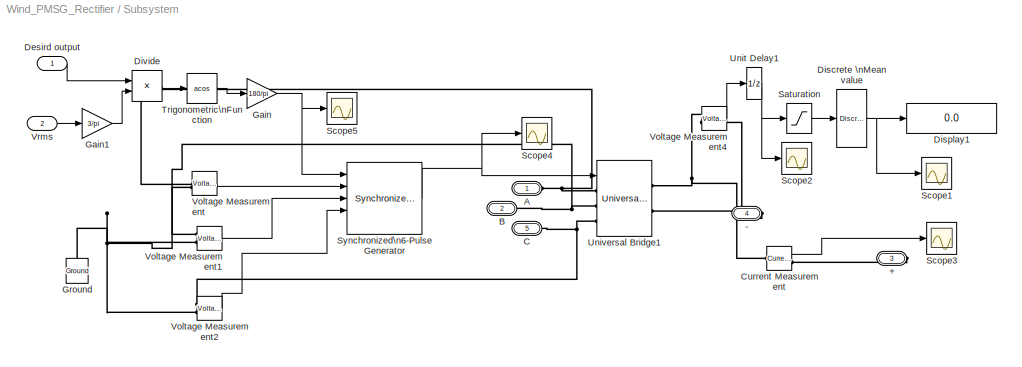
BLOCK [SubSystem] Subsystem
  FunctionWithSeparateData = off
  MaskHideContents = off
  MinAlgLoopOccurrences = off
  Opaque = off
  Ports = [2, 0, 0, 0, 0, 3, 2]
  PropExecContextOutsideSubsystem = off
  RTWSystemCode = Auto
  RequestExecContextInheritance = off
BLOCK [PMIOPort] Subsystem/+
  Port = 3
  Side = Right
BLOCK [PMIOPort] Subsystem/-
  Port = 4
  Side = Right
BLOCK [PMIOPort] Subsystem/A
  Port = 1
  Side = Left
BLOCK [PMIOPort] Subsystem/B
  Port = 2
  Side = Left
BLOCK [PMIOPort] Subsystem/C
  Port = 5
  Side = Left
BLOCK [Reference] Subsystem/Current Measurement  REF=powerlib/Measurements/Current Measurement
  DialogController = POWERSYS.PowerSysDialog
  FunctionWithSeparateData = off
  OutputType = Complex
  PSBequivalent = 0
  PhasorSimulation = off
  Ports = [0, 1, 0, 0, 0, 1, 1]
  RTWMemSecDataConstants = Inherit from model
  RTWMemSecDataInternal = Inherit from model
  RTWMemSecDataParameters = Inherit from model
  RTWMemSecFuncExecute = Inherit from model
  RTWMemSecFuncInitTerm = Inherit from model
  ShowPortLabels = FromPortIcon
  SourceBlock = powerlib/Measurements/Current Measurement
  SourceType = Current Measurement
  SystemSampleTime = -1
BLOCK [Inport] Subsystem/Desird output
  IconDisplay = Port number
BLOCK [Reference] Subsystem/Discrete \nMean value  REF=powerlib_extras/Discrete\nMeasurements/Discrete \nMean value
  DialogController = POWERSYS.PowerSysDialog
  Freq = 50*6
  FunctionWithSeparateData = off
  Ports = [1, 1]
  RTWMemSecDataConstants = Inherit from model
  RTWMemSecDataInternal = Inherit from model
  RTWMemSecDataParameters = Inherit from model
  RTWMemSecFuncExecute = Inherit from model
  RTWMemSecFuncInitTerm = Inherit from model
  ShowPortLabels = FromPortIcon
  SourceBlock = powerlib_extras/Discrete\nMeasurements/Discrete \nMean value
  SourceType = Discrete Mean value
  SystemSampleTime = -1
  Ts = 50e-6
  Vinit = 0
BLOCK [Display] Subsystem/Display1
  Decimation = 1
  Lockdown = off
  Ports = [1]
BLOCK [Product] Subsystem/Divide
  InputSameDT = off
  Inputs = */
  OutDataType = sfix(16)
  OutDataTypeMode = Inherit via internal rule
  OutDataTypeStr = Inherit: Inherit via internal rule
  OutScaling = 2^-10
  Ports = [2, 1]
  RndMeth = Floor
  SaturateOnIntegerOverflow = off
BLOCK [Gain] Subsystem/Gain
  Gain = 180/pi
  OutDataType = sfix(16)
  OutDataTypeMode = Inherit via internal rule
  OutDataTypeStr = Inherit: Inherit via internal rule
  OutScaling = 2^0
  ParamDataTypeStr = Inherit: Inherit via internal rule
  ParameterDataType = sfix(16)
  ParameterDataTypeMode = Inherit via internal rule
  ParameterScaling = 2^0
  SaturateOnIntegerOverflow = off
BLOCK [Gain] Subsystem/Gain1
  Gain = 3/pi
  OutDataType = sfix(16)
  OutDataTypeMode = Inherit via internal rule
  OutDataTypeStr = Inherit: Inherit via internal rule
  OutScaling = 2^0
  ParamDataTypeStr = Inherit: Inherit via internal rule
  ParameterDataType = sfix(16)
  ParameterDataTypeMode = Inherit via internal rule
  ParameterScaling = 2^0
  SaturateOnIntegerOverflow = off
BLOCK [Reference] Subsystem/Ground  REF=powerlib/Elements/Ground
  DialogController = POWERSYS.PowerSysDialog
  LConnTagsString = a
  LeftPortType = p1
  PhysicalDomain = powersysdomain
  Ports = [0, 0, 0, 0, 0, 1]
  RightPortType = p1
  SourceBlock = powerlib/Elements/Ground
  SourceType = Ground
  SubClassName = unknown
BLOCK [Saturate] Subsystem/Saturation
  LowerLimit = -1000
  OutDataType = sfix(16)
  OutScaling = 2^0
  UpperLimit = 1000
BLOCK [Scope] Subsystem/Scope1
  DataFormat = StructureWithTime
  Floating = off
  LimitDataPoints = off
  NumInputPorts = 1
  Ports = [1]
  SampleTime = 0
  TimeRange = 0.02
  YMax = 325
  YMin = -25
BLOCK [Scope] Subsystem/Scope2
  DataFormat = StructureWithTime
  Floating = off
  LimitDataPoints = off
  NumInputPorts = 1
  Ports = [1]
  SampleTime = 0
  SaveName = ScopeData1
  TimeRange = 0.02
  YMax = 550
  YMin = -250
BLOCK [Scope] Subsystem/Scope3
  DataFormat = StructureWithTime
  Floating = off
  LimitDataPoints = off
  NumInputPorts = 1
  Ports = [1]
  SampleTime = 0
  SaveName = ScopeData2
  TimeRange = 0.02
  YMax = 28.5
  YMin = 25.75
BLOCK [Scope] Subsystem/Scope4
  DataFormat = StructureWithTime
  Floating = off
  LimitDataPoints = off
  NumInputPorts = 1
  Ports = [1]
  SampleTime = 0
  SaveName = ScopeData4
  TimeRange = 0.02
  YMax = 1
  YMin = 0
BLOCK [Scope] Subsystem/Scope5
  DataFormat = StructureWithTime
  Floating = off
  LimitDataPoints = off
  NumInputPorts = 1
  Ports = [1]
  SampleTime = 0
  SaveName = ScopeData7
  TimeRange = 0.02
  YMax = 1
  YMin = -1
BLOCK [Reference] Subsystem/Synchronized\n6-Pulse Generator  REF=powerlib_extras/Control \nBlocks/Synchronized\n6-Pulse Generator
  DialogController = POWERSYS.PowerSysDialog
  Double_Pulse = off
  FunctionWithSeparateData = off
  Ports = [5, 1]
  RTWMemSecDataConstants = Inherit from model
  RTWMemSecDataInternal = Inherit from model
  RTWMemSecDataParameters = Inherit from model
  RTWMemSecFuncExecute = Inherit from model
  RTWMemSecFuncInitTerm = Inherit from model
  ShowPortLabels = FromPortIcon
  SourceBlock = powerlib_extras/Control \nBlocks/Synchronized\n6-Pulse Generator
  SourceType = Synchronized 6-pulse generator
  SystemSampleTime = -1
  freq = 25
  pwidth = 50
BLOCK [Trigonometry] Subsystem/Trigonometric\nFunction
  Operator = acos
  Ports = [1, 1]
BLOCK [UnitDelay] Subsystem/Unit Delay1
  SampleTime = -1
BLOCK [Reference] Subsystem/Universal Bridge1  REF=powerlib/Power\nElectronics/Universal Bridge
  Arms = 3
  Device = Thyristors
  DialogController = POWERSYS.PowerSysDialog
  ForwardVoltage = 0
  ForwardVoltages = [  0  0  ]
  FunctionWithSeparateData = off
  GTOparameters = [ 10e-6 , 20e-6 ]
  IGBTparameters = [ 1e-6 , 2e-6 ]
  Lon = 0
  Measurements = None
  Ports = [1, 0, 0, 0, 0, 3, 2]
  RTWMemSecDataConstants = Inherit from model
  RTWMemSecDataInternal = Inherit from model
  RTWMemSecDataParameters = Inherit from model
  RTWMemSecFuncExecute = Inherit from model
  RTWMemSecFuncInitTerm = Inherit from model
  Ron = 1e-3
  ShowPortLabels = FromPortIcon
  SnubberCapacitance = inf
  SnubberResistance = 1e5
  SourceBlock = powerlib/Power\nElectronics/Universal Bridge
  SourceType = Universal Bridge
  SystemSampleTime = -1
  converterType = Rectifier
BLOCK [Reference] Subsystem/Voltage Measurement  REF=powerlib/Measurements/Voltage Measurement
  DialogController = POWERSYS.PowerSysDialog
  FunctionWithSeparateData = off
  OutputType = Complex
  PSBequivalent = 0
  PhasorSimulation = off
  Ports = [0, 1, 0, 0, 0, 2]
  RTWMemSecDataConstants = Inherit from model
  RTWMemSecDataInternal = Inherit from model
  RTWMemSecDataParameters = Inherit from model
  RTWMemSecFuncExecute = Inherit from model
  RTWMemSecFuncInitTerm = Inherit from model
  ShowPortLabels = FromPortIcon
  SourceBlock = powerlib/Measurements/Voltage Measurement
  SourceType = Voltage Measurement
  SystemSampleTime = -1
BLOCK [Reference] Subsystem/Voltage Measurement1  REF=powerlib/Measurements/Voltage Measurement
  DialogController = POWERSYS.PowerSysDialog
  FunctionWithSeparateData = off
  OutputType = Complex
  PSBequivalent = 0
  PhasorSimulation = off
  Ports = [0, 1, 0, 0, 0, 2]
  RTWMemSecDataConstants = Inherit from model
  RTWMemSecDataInternal = Inherit from model
  RTWMemSecDataParameters = Inherit from model
  RTWMemSecFuncExecute = Inherit from model
  RTWMemSecFuncInitTerm = Inherit from model
  ShowPortLabels = FromPortIcon
  SourceBlock = powerlib/Measurements/Voltage Measurement
  SourceType = Voltage Measurement
  SystemSampleTime = -1
BLOCK [Reference] Subsystem/Voltage Measurement2  REF=powerlib/Measurements/Voltage Measurement
  DialogController = POWERSYS.PowerSysDialog
  FunctionWithSeparateData = off
  OutputType = Complex
  PSBequivalent = 0
  PhasorSimulation = off
  Ports = [0, 1, 0, 0, 0, 2]
  RTWMemSecDataConstants = Inherit from model
  RTWMemSecDataInternal = Inherit from model
  RTWMemSecDataParameters = Inherit from model
  RTWMemSecFuncExecute = Inherit from model
  RTWMemSecFuncInitTerm = Inherit from model
  ShowPortLabels = FromPortIcon
  SourceBlock = powerlib/Measurements/Voltage Measurement
  SourceType = Voltage Measurement
  SystemSampleTime = -1
BLOCK [Reference] Subsystem/Voltage Measurement4  REF=powerlib/Measurements/Voltage Measurement
  DialogController = POWERSYS.PowerSysDialog
  FunctionWithSeparateData = off
  OutputType = Complex
  PSBequivalent = 0
  PhasorSimulation = off
  Ports = [0, 1, 0, 0, 0, 2]
  RTWMemSecDataConstants = Inherit from model
  RTWMemSecDataInternal = Inherit from model
  RTWMemSecDataParameters = Inherit from model
  RTWMemSecFuncExecute = Inherit from model
  RTWMemSecFuncInitTerm = Inherit from model
  ShowPortLabels = FromPortIcon
  SourceBlock = powerlib/Measurements/Voltage Measurement
  SourceType = Voltage Measurement
  SystemSampleTime = -1
BLOCK [Inport] Subsystem/Vrms
  IconDisplay = Port number
  Port = 2
BLOCK [Scope] T
  DataFormat = StructureWithTime
  Floating = off
  LimitDataPoints = off
  NumInputPorts = 2
  Ports = [2]
  SampleInput = on
  SampleTime = 100e-6
  SaveName = Wind_MPPT
  SaveToWorkspace = on
  YMax = 39.97~152.59
  YMin = 39.75~152.46
BLOCK [Scope] T1
  DataFormat = StructureWithTime
  Floating = off
  LimitDataPoints = off
  NumInputPorts = 2
  Ports = [2]
  SampleInput = on
  SampleTime = 100e-6
  SaveName = Wind_MPPT1
  SaveToWorkspace = on
  YMax = 4520~3.5e-014
  YMin = 4380~-4e-014
BLOCK [Reference] Three-Phase Breaker  REF=powerlib/Elements/Three-Phase Breaker
  BreakerResistance = 0.001
  DialogController = POWERSYS.PowerSysDialog
  External = off
  FunctionWithSeparateData = off
  InitialState = open
  Measurements = None
  Ports = [0, 0, 0, 0, 0, 3, 3]
  RTWMemSecDataConstants = Inherit from model
  RTWMemSecDataInternal = Inherit from model
  RTWMemSecDataParameters = Inherit from model
  RTWMemSecFuncExecute = Inherit from model
  RTWMemSecFuncInitTerm = Inherit from model
  ShowPortLabels = FromPortIcon
  SnubberCapacitance = inf
  SnubberResistance = 1e6
  SourceBlock = powerlib/Elements/Three-Phase Breaker
  SourceType = Three-Phase Breaker
  SwitchA = on
  SwitchB = on
  SwitchC = on
  SwitchTimes = [1 10]
  SystemSampleTime = -1
BLOCK [Reference] Three-Phase\nSeries RLC Branch  REF=powerlib/Elements/Three-Phase\nSeries RLC Branch
  AttributesFormatString = \\n
  BranchType = R
  Capacitance = 1e-6
  DialogController = POWERSYS.PowerSysDialog
  Inductance = 1e-3
  LConnTagsString = A|B|C
  LeftPortType = p1
  Measurements = None
  PhysicalDomain = powersysdomain
  Ports = [0, 0, 0, 0, 0, 3, 3]
  RConnTagsString = A|B|C
  Resistance = 800
  RightPortType = p1
  SourceBlock = powerlib/Elements/Three-Phase\nSeries RLC Branch
  SourceType = Three-Phase Series RLC Branch
  SubClassName = unknown
BLOCK [UnitDelay] Unit Delay1
  SampleTime = -1
BLOCK [Reference] Vab3  REF=powerlib_extras/Discrete\nMeasurements/Discrete \nRMS value
  DialogController = POWERSYS.PowerSysDialog
  Freq = 50
  FunctionWithSeparateData = off
  Mag_Init = 0
  Ports = [1, 1]
  RTWMemSecDataConstants = Inherit from model
  RTWMemSecDataInternal = Inherit from model
  RTWMemSecDataParameters = Inherit from model
  RTWMemSecFuncExecute = Inherit from model
  RTWMemSecFuncInitTerm = Inherit from model
  ShowPortLabels = FromPortIcon
  SourceBlock = powerlib_extras/Discrete\nMeasurements/Discrete \nRMS value
  SourceType = Discrete RMS value
  SystemSampleTime = -1
  Ts = 20e-6
BLOCK [Reference] Voltage Measurement1  REF=powerlib/Measurements/Voltage Measurement
  DialogController = POWERSYS.PowerSysDialog
  FunctionWithSeparateData = off
  OutputType = Complex
  PSBequivalent = 0
  PhasorSimulation = off
  Ports = [0, 1, 0, 0, 0, 2]
  RTWMemSecDataConstants = Inherit from model
  RTWMemSecDataInternal = Inherit from model
  RTWMemSecDataParameters = Inherit from model
  RTWMemSecFuncExecute = Inherit from model
  RTWMemSecFuncInitTerm = Inherit from model
  ShowPortLabels = FromPortIcon
  SourceBlock = powerlib/Measurements/Voltage Measurement
  SourceType = Voltage Measurement
  SystemSampleTime = -1
BLOCK [Reference] Voltage Measurement4  REF=powerlib/Measurements/Voltage Measurement
  DialogController = POWERSYS.PowerSysDialog
  FunctionWithSeparateData = off
  OutputType = Complex
  PSBequivalent = 0
  PhasorSimulation = off
  Ports = [0, 1, 0, 0, 0, 2]
  RTWMemSecDataConstants = Inherit from model
  RTWMemSecDataInternal = Inherit from model
  RTWMemSecDataParameters = Inherit from model
  RTWMemSecFuncExecute = Inherit from model
  RTWMemSecFuncInitTerm = Inherit from model
  ShowPortLabels = FromPortIcon
  SourceBlock = powerlib/Measurements/Voltage Measurement
  SourceType = Voltage Measurement
  SystemSampleTime = -1
BLOCK [Display] power1
  Decimation = 1
  Lockdown = off
  Ports = [1]
  SampleTime = 1e-3
BLOCK [Reference] powergui  REF=powerlib/powergui
  DisplayStyle = 1
  EnableUseOfTLC = off
  Frange = [0:2:500]
  FreqAxis = off
  FunctionMessages = off
  FunctionWithSeparateData = off
  HookPort = off
  Interpol = off
  MaxFrequency = 1000
  Ports = []
  RTWMemSecDataConstants = Inherit from model
  RTWMemSecDataInternal = Inherit from model
  RTWMemSecDataParameters = Inherit from model
  RTWMemSecFuncExecute = Inherit from model
  RTWMemSecFuncInitTerm = Inherit from model
  RestoreLinks = warning
  RmsSteady = 1
  SPID = off
  SampleTime = 20e-6
  ShowGrid = off
  ShowPortLabels = FromPortIcon
  SourceBlock = powerlib/powergui
  SourceType = PSB option menu block
  StartTime = 0.0
  SwTol = 0
  SystemSampleTime = -1
  Ts = 0
  UserData = DataTag0
  UserDataPersistent = on
  Xlog = on
  Ylog = off
  ZoomFFT = on
  cycles = 1
  display = off
  echomessages = off
  frequency = 60
  frequencyindice = 0
  frequencyindicesteady = 1
  fundamental = 60
  methode = off
  save = off
  variable = ZData
  x0status = blocks
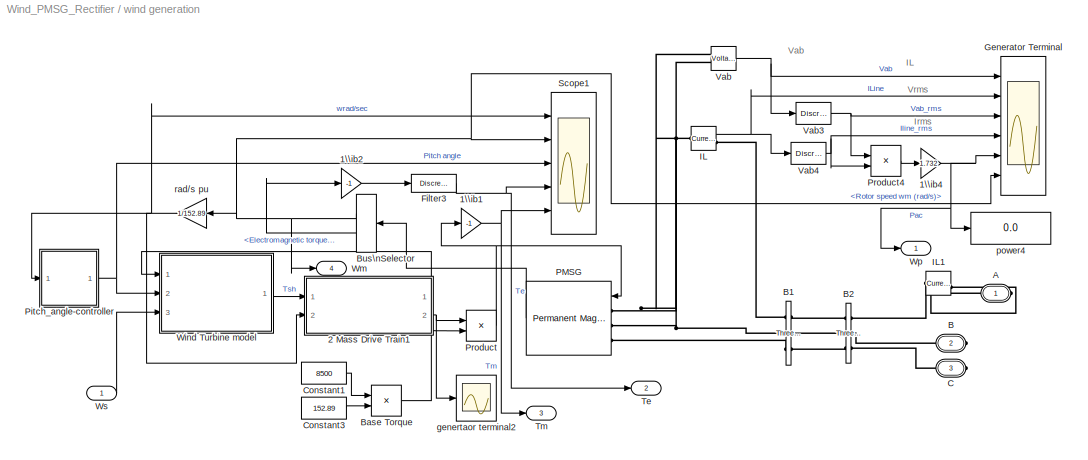
BLOCK [SubSystem] wind generation
  FunctionWithSeparateData = off
  MaskHideContents = off
  MinAlgLoopOccurrences = off
  Opaque = off
  Ports = [1, 4, 0, 0, 0, 0, 3]
  PropExecContextOutsideSubsystem = off
  RTWSystemCode = Auto
  RequestExecContextInheritance = off
BLOCK [Gain] wind generation/1\\ib1
  Gain = -1
  OutDataType = sfix(16)
  OutScaling = 2^0
  ParameterDataType = sfix(16)
  ParameterScaling = 2^0
BLOCK [Gain] wind generation/1\\ib2
  Gain = -1
  OutDataType = sfix(16)
  OutScaling = 2^0
  ParameterDataType = sfix(16)
  ParameterScaling = 2^0
BLOCK [Gain] wind generation/1\\ib4
  Gain = 1.732
  OutDataType = sfix(16)
  OutScaling = 2^0
  ParameterDataType = sfix(16)
  ParameterScaling = 2^0
BLOCK [SubSystem] wind generation/2 Mass Drive Train1
  FunctionWithSeparateData = off
  MaskHideContents = off
  MinAlgLoopOccurrences = off
  Opaque = off
  Ports = [2, 2]
  PropExecContextOutsideSubsystem = off
  RTWSystemCode = Auto
  RequestExecContextInheritance = off
BLOCK [Gain] wind generation/2 Mass Drive Train1/1_2H_WT\nWind Turbine Inertia Const
  Gain = 1/(2*4)
  OutDataType = sfix(16)
  OutScaling = 2^0
  ParameterDataType = sfix(16)
  ParameterScaling = 2^0
BLOCK [DiscreteIntegrator] wind generation/2 Mass Drive Train1/Discrete-Time\nIntegrator
  ExternalReset = none
  ICPrevOutput = DiscIntNeverNeededParam
  ICPrevScaledInput = DiscIntNeverNeededParam
  InitialCondition = 1
  InitialConditionSource = internal
  IntegratorMethod = Integration: Forward Euler
  OutDataType = sfix(16)
  OutScaling = 2^0
  Ports = [1, 1]
  SampleTime = 20e-6
BLOCK [DiscreteIntegrator] wind generation/2 Mass Drive Train1/Discrete-Time\nIntegrator1
  ExternalReset = none
  ICPrevOutput = DiscIntNeverNeededParam
  ICPrevScaledInput = DiscIntNeverNeededParam
  InitialCondition = 1/0.3
  InitialConditionSource = internal
  IntegratorMethod = Integration: Forward Euler
  LowerSaturationLimit = -4
  OutDataType = sfix(16)
  OutScaling = 2^0
  Ports = [1, 1]
  SampleTime = 20e-6
  UpperSaturationLimit = 4
BLOCK [Gain] wind generation/2 Mass Drive Train1/Gain
  Gain = -1
  OutDataType = sfix(16)
  OutScaling = 2^0
  ParameterDataType = sfix(16)
  ParameterScaling = 2^0
BLOCK [Inport] wind generation/2 Mass Drive Train1/Gen speed (pu)
  IconDisplay = Port number
  OutDataType = sfix(16)
  OutScaling = 2^0
  Port = 2
BLOCK [Gain] wind generation/2 Mass Drive Train1/Mutual damping
  OutDataType = sfix(16)
  OutScaling = 2^0
  ParameterDataType = sfix(16)
  ParameterScaling = 2^0
BLOCK [Gain] wind generation/2 Mass Drive Train1/Stiffness\nShaft Spring Const
  Gain = 0.3
  OutDataType = sfix(16)
  OutScaling = 2^0
  ParameterDataType = sfix(16)
  ParameterScaling = 2^0
BLOCK [Sum] wind generation/2 Mass Drive Train1/Sum
  Inputs = +-
  OutDataType = sfix(16)
  OutScaling = 2^0
  Ports = [2, 1]
BLOCK [Sum] wind generation/2 Mass Drive Train1/Sum1
  Inputs = +-
  OutDataType = sfix(16)
  OutScaling = 2^0
  Ports = [2, 1]
BLOCK [Sum] wind generation/2 Mass Drive Train1/Sum2
  OutDataType = sfix(16)
  OutScaling = 2^0
  Ports = [2, 1]
BLOCK [Outport] wind generation/2 Mass Drive Train1/T_shaft (pu)
  IconDisplay = Port number
  OutDataType = sfix(16)
  OutScaling = 2^0
  Port = 2
BLOCK [Inport] wind generation/2 Mass Drive Train1/T_wt (pu)
  IconDisplay = Port number
  OutDataType = sfix(16)
  OutScaling = 2^0
BLOCK [Outport] wind generation/2 Mass Drive Train1/W_wt (pu)
  IconDisplay = Port number
  OutDataType = sfix(16)
  OutScaling = 2^0
BLOCK [Scope] wind generation/2 Mass Drive Train1/genertaor terminal5
  DataFormat = StructureWithTime
  Floating = off
  LimitDataPoints = off
  NumInputPorts = 1
  Ports = [1]
  SampleInput = on
  SampleTime = 100e-6
  SaveName = Wwt
  SaveToWorkspace = on
  YMax = 0.94425
  YMin = 0.94175
BLOCK [Gain] wind generation/2 Mass Drive Train1/wbase
  Gain = 152.8
  OutDataType = sfix(16)
  OutScaling = 2^0
  ParameterDataType = sfix(16)
  ParameterScaling = 2^0
BLOCK [PMIOPort] wind generation/A
  Port = 1
  Side = Right
  Tag = PMCPort
BLOCK [PMIOPort] wind generation/B
  Port = 2
  Side = Right
  Tag = PMCPort
BLOCK [Reference] wind generation/B1  REF=powerlib/Measurements/Three-Phase\nV-I Measurement
  CurrentMeasurement = yes
  DialogController = POWERSYS.PowerSysDialog
  FunctionWithSeparateData = off
  Ipu = off
  LabelI = Iabc_B1
  LabelV = Vabc_B1
  OutputType = Magnitude
  PSBequivalent = 0
  Pbase = 100e6
  PhasorSimulation = off
  Ports = [0, 0, 0, 0, 0, 3, 3]
  RTWMemSecDataConstants = Inherit from model
  RTWMemSecDataInternal = Inherit from model
  RTWMemSecDataParameters = Inherit from model
  RTWMemSecFuncExecute = Inherit from model
  RTWMemSecFuncInitTerm = Inherit from model
  SetLabelI = on
  SetLabelV = on
  ShowPortLabels = FromPortIcon
  SourceBlock = powerlib/Measurements/Three-Phase\nV-I Measurement
  SourceType = Three-Phase VI Measurement
  SystemSampleTime = -1
  Vbase = 500e3
  VoltageMeasurement = phase-to-ground
  Vpu = off
BLOCK [Reference] wind generation/B2   REF=powerlib/Measurements/Three-Phase\nV-I Measurement
  CurrentMeasurement = no
  DialogController = POWERSYS.PowerSysDialog
  FunctionWithSeparateData = off
  Ipu = off
  LabelI = Iabc_B2
  LabelV = Vabc_B2
  OutputType = Magnitude
  PSBequivalent = 0
  Pbase = 100e6
  PhasorSimulation = off
  Ports = [0, 0, 0, 0, 0, 3, 3]
  RTWMemSecDataConstants = Inherit from model
  RTWMemSecDataInternal = Inherit from model
  RTWMemSecDataParameters = Inherit from model
  RTWMemSecFuncExecute = Inherit from model
  RTWMemSecFuncInitTerm = Inherit from model
  SetLabelI = on
  SetLabelV = on
  ShowPortLabels = FromPortIcon
  SourceBlock = powerlib/Measurements/Three-Phase\nV-I Measurement
  SourceType = Three-Phase VI Measurement
  SystemSampleTime = -1
  Vbase = 500e3
  VoltageMeasurement = no
  Vpu = off
BLOCK [Product] wind generation/Base Torque
  InputSameDT = off
  Inputs = */
  OutDataType = sfix(16)
  OutDataTypeMode = Inherit via internal rule
  OutDataTypeStr = Inherit: Inherit via internal rule
  OutScaling = 2^0
  Ports = [2, 1]
  SaturateOnIntegerOverflow = off
BLOCK [BusSelector] wind generation/Bus\nSelector
  OutputSignals = Rotor speed wm (rad/s),Electromagnetic torque Te (N*m)
  Ports = [1, 2]
BLOCK [PMIOPort] wind generation/C
  Port = 3
  Side = Right
  Tag = PMCPort
BLOCK [Constant] wind generation/Constant1
  OutDataType = sfix(16)
  OutScaling = 2^0
  Value = 8500
BLOCK [Constant] wind generation/Constant3
  OutDataType = sfix(16)
  OutScaling = 2^0
  Value = 152.89
BLOCK [Reference] wind generation/Filter3  REF=powerlib_extras/Discrete \nControl Blocks/Discrete\n1st-Order\nFilter
  DialogController = POWERSYS.PowerSysDialog
  FilterType = Lowpass
  FunctionWithSeparateData = off
  Initialize = off
  PlotResponse = off
  Ports = [1, 1]
  RTWMemSecDataConstants = Inherit from model
  RTWMemSecDataInternal = Inherit from model
  RTWMemSecDataParameters = Inherit from model
  RTWMemSecFuncExecute = Inherit from model
  RTWMemSecFuncInitTerm = Inherit from model
  ShowPortLabels = FromPortIcon
  SourceBlock = powerlib_extras/Discrete \nControl Blocks/Discrete\n1st-Order\nFilter
  SourceType = Discrete 1st-Order Filter
  SystemSampleTime = -1
  Tc = 1e-3
  Ts = 20e-6
  Vac_Init = [0.8 -25 60]
  Vdc_Init = -0.4
  param1 = [1 500 0.1]
BLOCK [Scope] wind generation/Generator Terminal
  DataFormat = StructureWithTime
  Floating = off
  LimitDataPoints = off
  NumInputPorts = 6
  Ports = [6]
  SampleInput = on
  SampleTime = 100e-6
  SaveName = Generator_Terminal
  SaveToWorkspace = on
  YMax = 750~1~477.5~0.56~460~175.4
  YMin = -750~-1~450~0.525~410~175.15
BLOCK [Reference] wind generation/IL  REF=powerlib/Measurements/Current Measurement
  DialogController = POWERSYS.PowerSysDialog
  FunctionWithSeparateData = off
  OutputType = Complex
  PSBequivalent = 0
  PhasorSimulation = off
  Ports = [0, 1, 0, 0, 0, 1, 1]
  RTWMemSecDataConstants = Inherit from model
  RTWMemSecDataInternal = Inherit from model
  RTWMemSecDataParameters = Inherit from model
  RTWMemSecFuncExecute = Inherit from model
  RTWMemSecFuncInitTerm = Inherit from model
  ShowPortLabels = FromPortIcon
  SourceBlock = powerlib/Measurements/Current Measurement
  SourceType = Current Measurement
  SystemSampleTime = -1
BLOCK [Reference] wind generation/IL1  REF=powerlib/Measurements/Current Measurement
  DialogController = POWERSYS.PowerSysDialog
  FunctionWithSeparateData = off
  OutputType = Complex
  PSBequivalent = 0
  PhasorSimulation = off
  Ports = [0, 1, 0, 0, 0, 1, 1]
  RTWMemSecDataConstants = Inherit from model
  RTWMemSecDataInternal = Inherit from model
  RTWMemSecDataParameters = Inherit from model
  RTWMemSecFuncExecute = Inherit from model
  RTWMemSecFuncInitTerm = Inherit from model
  ShowPortLabels = FromPortIcon
  SourceBlock = powerlib/Measurements/Current Measurement
  SourceType = Current Measurement
  SystemSampleTime = -1
BLOCK [Reference] wind generation/PMSG  REF=powerlib/Machines/Permanent Magnet\nSynchronous Machine
  DialogController = POWERSYS.PowerSysDialog
  Flat = 120
  Flux = 0.433
  FluxDistribution = Sinusoidal
  FunctionWithSeparateData = off
  Inductance = 8.5e-3
  InitialConditions = [0,0, 0,0]
  MachineConstant = Flux linkage established by magnets (V.s)
  Mechanical = [0.01197 0.001189 5]
  MechanicalLoad = Torque Tm
  PolePairs = 5
  Ports = [1, 1, 0, 0, 0, 3]
  PresetModel = No
  RTWMemSecDataConstants = Inherit from model
  RTWMemSecDataInternal = Inherit from model
  RTWMemSecDataParameters = Inherit from model
  RTWMemSecFuncExecute = Inherit from model
  RTWMemSecFuncInitTerm = Inherit from model
  Resistance = 0.425
  ShowDetailedParameters = on
  ShowPortLabels = FromPortIcon
  SourceBlock = powerlib/Machines/Permanent Magnet\nSynchronous Machine
  SourceType = Permanent Magnet Synchronous Machine
  SystemSampleTime = -1
  TorqueCst = 3.2475
  TsBlock = -1
  TsPowergui = 0
  VoltageCst = 392.6876
  dqInductances = [0.0082 0.0082]
BLOCK [SubSystem] wind generation/Pitch_angle-controller
  FunctionWithSeparateData = off
  MaskHideContents = off
  MinAlgLoopOccurrences = off
  Opaque = off
  Ports = [1, 1]
  PropExecContextOutsideSubsystem = off
  RTWSystemCode = Auto
  RequestExecContextInheritance = off
BLOCK [Saturate] wind generation/Pitch_angle-controller/0-pitch_max
  LowerLimit = 0
  UpperLimit = 45
BLOCK [Constant] wind generation/Pitch_angle-controller/Constant2
  OutDataType = sfix(16)
  OutScaling = 2^0
  Value = 2
BLOCK [Outport] wind generation/Pitch_angle-controller/Pitch_angle1
  IconDisplay = Port number
  OutDataType = sfix(16)
  OutScaling = 2^0
BLOCK [RateLimiter] wind generation/Pitch_angle-controller/Rate Limiter   
  FallingSlewLimit = -2
  RisingSlewLimit = 2
BLOCK [Sum] wind generation/Pitch_angle-controller/Sum
  IconShape = round
  InputSameDT = off
  Inputs = |+-
  OutDataType = sfix(16)
  OutDataTypeMode = Inherit via internal rule
  OutDataTypeStr = Inherit: Inherit via internal rule
  OutScaling = 2^0
  Ports = [2, 1]
BLOCK [Scope] wind generation/Pitch_angle-controller/genertaor terminal6
  DataFormat = StructureWithTime
  Floating = off
  LimitDataPoints = off
  NumInputPorts = 2
  Ports = [2]
  SampleInput = on
  SampleTime = 100e-6
  SaveName = ScopeData9
  SaveToWorkspace = on
  YMax = 1~1
  YMin = -1~-1
BLOCK [Gain] wind generation/Pitch_angle-controller/pitch_gain
  Gain = 500
  OutDataType = sfix(16)
  OutScaling = 2^0
  ParameterDataType = sfix(16)
  ParameterScaling = 2^0
BLOCK [Inport] wind generation/Pitch_angle-controller/wr1
  IconDisplay = Port number
  OutDataType = sfix(16)
  OutScaling = 2^0
BLOCK [Product] wind generation/Product
  InputSameDT = off
  OutDataType = sfix(16)
  OutDataTypeMode = Inherit via internal rule
  OutDataTypeStr = Inherit: Inherit via internal rule
  OutScaling = 2^0
  Ports = [2, 1]
  SaturateOnIntegerOverflow = off
BLOCK [Product] wind generation/Product4
  InputSameDT = off
  OutDataType = sfix(16)
  OutDataTypeMode = Inherit via internal rule
  OutDataTypeStr = Inherit: Inherit via internal rule
  OutScaling = 2^0
  Ports = [2, 1]
  SaturateOnIntegerOverflow = off
BLOCK [Scope] wind generation/Scope1
  DataFormat = StructureWithTime
  Floating = off
  LimitDataPoints = off
  NumInputPorts = 5
  Ports = [5]
  SampleInput = on
  SampleTime = 100e-6
  SaveName = ScopeData90
  SaveToWorkspace = on
  YMax = 1~152.8~1~42.5~40.325
  YMin = 0.993~151.8~-1~37.5~40.05
BLOCK [Outport] wind generation/Te
  IconDisplay = Port number
  OutDataType = sfix(16)
  OutScaling = 2^0
  Port = 2
BLOCK [Outport] wind generation/Tm
  IconDisplay = Port number
  OutDataType = sfix(16)
  OutScaling = 2^0
  Port = 3
BLOCK [Reference] wind generation/Vab  REF=powerlib/Measurements/Voltage Measurement
  DialogController = POWERSYS.PowerSysDialog
  FunctionWithSeparateData = off
  OutputType = Complex
  PSBequivalent = 0
  PhasorSimulation = off
  Ports = [0, 1, 0, 0, 0, 2]
  RTWMemSecDataConstants = Inherit from model
  RTWMemSecDataInternal = Inherit from model
  RTWMemSecDataParameters = Inherit from model
  RTWMemSecFuncExecute = Inherit from model
  RTWMemSecFuncInitTerm = Inherit from model
  ShowPortLabels = FromPortIcon
  SourceBlock = powerlib/Measurements/Voltage Measurement
  SourceType = Voltage Measurement
  SystemSampleTime = -1
BLOCK [Reference] wind generation/Vab3  REF=powerlib_extras/Discrete\nMeasurements/Discrete \nRMS value
  DialogController = POWERSYS.PowerSysDialog
  Freq = 50
  FunctionWithSeparateData = off
  Mag_Init = 0
  Ports = [1, 1]
  RTWMemSecDataConstants = Inherit from model
  RTWMemSecDataInternal = Inherit from model
  RTWMemSecDataParameters = Inherit from model
  RTWMemSecFuncExecute = Inherit from model
  RTWMemSecFuncInitTerm = Inherit from model
  ShowPortLabels = FromPortIcon
  SourceBlock = powerlib_extras/Discrete\nMeasurements/Discrete \nRMS value
  SourceType = Discrete RMS value
  SystemSampleTime = -1
  Ts = 20e-6
BLOCK [Reference] wind generation/Vab4  REF=powerlib_extras/Discrete\nMeasurements/Discrete \nRMS value
  DialogController = POWERSYS.PowerSysDialog
  Freq = 50
  FunctionWithSeparateData = off
  Mag_Init = 0
  Ports = [1, 1]
  RTWMemSecDataConstants = Inherit from model
  RTWMemSecDataInternal = Inherit from model
  RTWMemSecDataParameters = Inherit from model
  RTWMemSecFuncExecute = Inherit from model
  RTWMemSecFuncInitTerm = Inherit from model
  ShowPortLabels = FromPortIcon
  SourceBlock = powerlib_extras/Discrete\nMeasurements/Discrete \nRMS value
  SourceType = Discrete RMS value
  SystemSampleTime = -1
  Ts = 20e-6
BLOCK [SubSystem] wind generation/Wind Turbine model
  AncestorBlock = DRlib/Wind Generation/Wind Turbine
  DialogController = POWERSYS.PowerSysDialog
  FunctionWithSeparateData = off
  MaskCallbackString = ParVisible={'on','on','on','on','on','on','on','off','off','off',};\nset_param(gcb,'MaskVisibilities',ParVisible);\nc1_c6=str2num(get_param(gcb,'c1_c6'));\nc1=c1_c6(1);c2=c1_c6(2);c3=c1_c6(3);c4=c1_c6(4);c5=c1_c6(5);c6=c1_c6(6);||||||DisplayTurbChar=get_param(gcb,'DisplayTurbChar');\n\nif strcmp(DisplayTurbChar,'on')\n    fig_num=figure;\n	clf(fig_num);\n	[speed_nom,wind_base,P_wind_base,pitch_ang...<+2425ch>
  MaskDescription = This block implements a variable pitch wind turbine model. The performance coefficient Cp of the turbine is the mechanical output power of the turbine divided by wind power and a function of wind speed, rotational speed, and pitch angle (beta). Cp reaches its maximum value at zero beta. Select the wind-turbine power characteristics display to plot the turbine characteristics at the specified pitch...<+551ch>
  MaskDisplay = disp('');\n
  MaskEnableString = on,on,on,on,on,on,on,on,on,on
  MaskHelp = web(psbhelp);
  MaskHideContents = off
  MaskIconFrame = on
  MaskIconOpaque = off
  MaskIconRotate = none
  MaskIconUnits = autoscale
  MaskInitialization = %Wind turbine typical characteristic data\n%c2=116;c3=0.4;c4=5;c5=21;\n%Computation of c1 and c6 for lambda_nom et cpmax\n%lambda_nom=8.1;\n%cp_max=0.48;\n%cp_nom=cp_max;\n\n%lambda_i_nom=1/(1/lambda_nom-0.035);\n%k_nom=-(c2*c5/lambda_i_nom-c4*c5-c2)*exp(-c5/lambda_i_nom)/lambda_nom^2;\n%c1=cp_max/((c2/lambda_i_nom-c4)*exp(-c5/lambda_i_nom)+k_nom*lambda_nom);\n%c6=k_nom*c1;\npower_initmask();
  MaskPromptString = Nominal mechanical output power (W):|Base power of the electrical generator (VA):|Base wind speed (m/s):|Maximum power at base wind speed (pu of nominal mechanical power):|Base rotational speed (p.u. of base generator speed):|Pitch angle beta to display wind-turbine power characteristics (beta >=0)  (deg):|Display wind turbine power characteristics|c1_c6|cp_nom|lambda_nom
  MaskSelfModifiable = on
  MaskStyleString = edit,edit,edit,edit,edit,edit,checkbox,edit,edit,edit
  MaskTabNameString = ,,,,,,,,,
  MaskToolTipString = on,on,on,on,on,on,on,on,on,on
  MaskTunableValueString = on,on,on,on,on,on,on,on,on,on
  MaskType = Wind Turbine
  MaskValueString = 8.5e3|8.5e3/0.9|12|0.8|1|0|off|[0.51763          116          0.4            5           21     0.006795]|0.48|8.1
  MaskVarAliasString = ,,,,,,,,,
  MaskVariables = Pnom=@1;Pelec_base=@2;wind_base=@3;P_wind_base=@4;speed_nom=@5;pitch_angle=@6;DisplayTurbChar=&7;c1_c6=@8;cp_nom=@9;lambda_nom=@10;
  MaskVisibilityString = on,on,on,on,on,on,on,off,off,off
  MinAlgLoopOccurrences = off
  Opaque = off
  Ports = [3, 1]
  PropExecContextOutsideSubsystem = off
  RTWSystemCode = Auto
  RequestExecContextInheritance = off
BLOCK [Gain] wind generation/Wind Turbine model/1//cp_nom
  Gain = 1/cp_nom
  OutDataType = sfix(16)
  OutScaling = 2^0
  ParameterDataType = sfix(16)
  ParameterScaling = 2^0
BLOCK [Gain] wind generation/Wind Turbine model/1//wind_base
  Gain = 1/wind_base
  OutDataType = sfix(16)
  OutScaling = 2^0
  ParameterDataType = sfix(16)
  ParameterScaling = 2^0
BLOCK [Saturate] wind generation/Wind Turbine model/Avoid division\nby zero
  LowerLimit = 1e-6
  OutDataType = sfix(16)
  OutScaling = 2^0
  UpperLimit = 1e6
BLOCK [Saturate] wind generation/Wind Turbine model/Avoid division\nby zero 
  LowerLimit = 1e-6
  OutDataType = sfix(16)
  OutScaling = 2^0
  UpperLimit = 1e6
BLOCK [Gain] wind generation/Wind Turbine model/Gain
  OutDataType = sfix(16)
  OutScaling = 2^0
  ParameterDataType = sfix(16)
  ParameterScaling = 2^0
BLOCK [Inport] wind generation/Wind Turbine model/Generator speed (pu)
  IconDisplay = Port number
  OutDataType = sfix(16)
  OutScaling = 2^0
BLOCK [Inport] wind generation/Wind Turbine model/Pitch angle (deg)
  IconDisplay = Port number
  OutDataType = sfix(16)
  OutScaling = 2^0
  Port = 2
BLOCK [Product] wind generation/Wind Turbine model/Product
  InputSameDT = off
  Inputs = /*
  OutDataType = sfix(16)
  OutScaling = 2^0
  Ports = [2, 1]
  RndMeth = Floor
BLOCK [Product] wind generation/Wind Turbine model/Product 
  InputSameDT = off
  OutDataType = sfix(16)
  OutScaling = 2^0
  Ports = [2, 1]
  RndMeth = Floor
BLOCK [Product] wind generation/Wind Turbine model/Product2
  Inputs = */
  OutDataType = sfix(16)
  OutScaling = 2^0
  Ports = [2, 1]
  RndMeth = Floor
BLOCK [Saturate] wind generation/Wind Turbine model/Saturation1
  LowerLimit = 1e-6
  OutDataType = sfix(16)
  OutScaling = 2^0
  UpperLimit = inf
BLOCK [Scope] wind generation/Wind Turbine model/Scope
  DataFormat = StructureWithTime
  Floating = off
  NumInputPorts = 1
  Ports = [1]
  SampleTime = 0
  SaveName = ScopeData10
BLOCK [Outport] wind generation/Wind Turbine model/Tm (pu)
  IconDisplay = Port number
  OutDataType = sfix(16)
  OutScaling = 2^0
BLOCK [Inport] wind generation/Wind Turbine model/Wind speed\n(m//s)
  IconDisplay = Port number
  OutDataType = sfix(16)
  OutScaling = 2^0
  Port = 3
BLOCK [SubSystem] wind generation/Wind Turbine model/cp(lambda,beta)
  FunctionWithSeparateData = off
  MaskHideContents = off
  MinAlgLoopOccurrences = off
  Opaque = off
  Ports = [2, 1]
  PropExecContextOutsideSubsystem = off
  RTWSystemCode = Auto
  RequestExecContextInheritance = off
BLOCK [Fcn] wind generation/Wind Turbine model/cp(lambda,beta)/Fcn
  Expr = 1/(1/(u[1]+0.08*u[2])-0.035/(u[2]^3+1))
BLOCK [Fcn] wind generation/Wind Turbine model/cp(lambda,beta)/Fcn1
  Expr = c1*(c2/u[2]-c3*u[3]-c4)*exp(-c5/u[2])+c6*u[1]
BLOCK [Mux] wind generation/Wind Turbine model/cp(lambda,beta)/Mux
  DisplayOption = bar
  Inputs = 2
  Ports = [2, 1]
BLOCK [Mux] wind generation/Wind Turbine model/cp(lambda,beta)/Mux1
  DisplayOption = bar
  Inputs = 3
  Ports = [3, 1]
BLOCK [Inport] wind generation/Wind Turbine model/cp(lambda,beta)/beta
  IconDisplay = Port number
  OutDataType = sfix(16)
  OutScaling = 2^0
  Port = 2
BLOCK [Outport] wind generation/Wind Turbine model/cp(lambda,beta)/cp
  IconDisplay = Port number
  OutDataType = sfix(16)
  OutScaling = 2^0
BLOCK [Inport] wind generation/Wind Turbine model/cp(lambda,beta)/lambda
  IconDisplay = Port number
  OutDataType = sfix(16)
  OutScaling = 2^0
BLOCK [Gain] wind generation/Wind Turbine model/lambda_nom
  Gain = lambda_nom
  OutDataType = sfix(16)
  OutScaling = 2^0
  ParameterDataType = sfix(16)
  ParameterScaling = 2^0
BLOCK [Gain] wind generation/Wind Turbine model/pu->pu
  Gain = P_wind_base*Pnom/Pelec_base
  OutDataType = sfix(16)
  OutScaling = 2^0
  ParameterDataType = sfix(16)
  ParameterScaling = 2^0
BLOCK [Gain] wind generation/Wind Turbine model/pu->pu 
  Gain = 1/speed_nom
  OutDataType = sfix(16)
  OutScaling = 2^0
  ParameterDataType = sfix(16)
  ParameterScaling = 2^0
BLOCK [Fcn] wind generation/Wind Turbine model/wind_speed^3
  Expr = u(1)^3
BLOCK [Outport] wind generation/Wm
  IconDisplay = Port number
  OutDataType = sfix(16)
  OutScaling = 2^0
  Port = 4
BLOCK [Outport] wind generation/Wp
  IconDisplay = Port number
  OutDataType = sfix(16)
  OutScaling = 2^0
BLOCK [Inport] wind generation/Ws
  IconDisplay = Port number
  OutDataType = sfix(16)
  OutScaling = 2^0
BLOCK [Scope] wind generation/genertaor terminal2
  DataFormat = StructureWithTime
  Floating = off
  LimitDataPoints = off
  NumInputPorts = 1
  Ports = [1]
  SampleInput = on
  SampleTime = 100e-6
  SaveName = ref_torque1
  SaveToWorkspace = on
  YMax = -0.5122
  YMin = -0.5138
BLOCK [Display] wind generation/power4
  Decimation = 1
  Lockdown = off
  Ports = [1]
  SampleTime = 1e-3
BLOCK [Gain] wind generation/rad//s pu
  Gain = 1/152.89
  OutDataType = sfix(16)
  OutScaling = 2^0
  ParameterDataType = sfix(16)
  ParameterScaling = 2^0
ANNOTATION (root): PMSG based Wind Energy System with Controlleable Rectifire \nAuthor: Siva Ganesh Malla, IIT Bhubaneswar, India, Email: <email>
ANNOTATION (root): wind speed
ANNOTATION wind generation: IL
ANNOTATION wind generation: Irms
ANNOTATION wind generation: Vab
ANNOTATION wind generation: Vrms
ANNOTATION wind generation/2 Mass Drive Train1: Shaft
ANNOTATION wind generation/2 Mass Drive Train1: Turbine
ANNOTATION wind generation/2 Mass Drive Train1: Wind turbine drive train based on a 2-masse model
LINE 3-phase :1 -> Discrete \nMean value1:1
LINE Constant1:1 -> Subsystem:1
LINE Constant2:1 -> Manual Switch:2
LINE Demux1:1 -> T1:1
LINE Demux1:2 -> T1:2
LINE Discrete \nMean value1:1 -> Demux1:1
NET Discrete \nMean value:1 -> Display1:1, Scope1:1
LINE From1:1 -> 3-phase :1
LINE From2:1 -> 3-phase :2
LINE Manual Switch:1 -> wind generation:1
LINE Mux1:1 -> T:1
LINE Saturation1:1 -> Vab3:1
LINE Saturation:1 -> Discrete \nMean value:1
LINE Speed3:1 -> Manual Switch:1
LINE Subsystem/Current Measurement:1 -> Subsystem/Scope3:1
LINE Subsystem/Desird output:1 -> Subsystem/Divide:1
NET Subsystem/Discrete \nMean value:1 -> Subsystem/Display1:1, Subsystem/Scope1:1
LINE Subsystem/Divide:1 -> Subsystem/Trigonometric\nFunction:1
LINE Subsystem/Gain1:1 -> Subsystem/Divide:2
NET Subsystem/Gain:1 -> Subsystem/Scope5:1, Subsystem/Synchronized\n6-Pulse Generator:1
LINE Subsystem/Saturation:1 -> Subsystem/Discrete \nMean value:1
NET Subsystem/Synchronized\n6-Pulse Generator:1 -> Subsystem/Scope4:1, Subsystem/Universal Bridge1:1
LINE Subsystem/Trigonometric\nFunction:1 -> Subsystem/Gain:1
NET Subsystem/Unit Delay1:1 -> Subsystem/Saturation:1, Subsystem/Scope2:1
LINE Subsystem/Voltage Measurement1:1 -> Subsystem/Synchronized\n6-Pulse Generator:3
LINE Subsystem/Voltage Measurement2:1 -> Subsystem/Synchronized\n6-Pulse Generator:4
LINE Subsystem/Voltage Measurement4:1 -> Subsystem/Unit Delay1:1
LINE Subsystem/Voltage Measurement:1 -> Subsystem/Synchronized\n6-Pulse Generator:2
LINE Subsystem/Vrms:1 -> Subsystem/Gain1:1
LINE Unit Delay1:1 -> Saturation:1
NET Vab3:1 -> Scope2:1, Subsystem:2
LINE Voltage Measurement1:1 -> Unit Delay1:1
NET Voltage Measurement4:1 -> Saturation1:1, Scope3:1
NET wind generation/1\\ib1:1 -> wind generation/Scope1:5, wind generation/Tm:1
LINE wind generation/1\\ib2:1 -> wind generation/Filter3:1
NET wind generation/1\\ib4:1 -> wind generation/Generator Terminal:5, wind generation/Wp:1, wind generation/power4:1
LINE wind generation/2 Mass Drive Train1/1_2H_WT\nWind Turbine Inertia Const:1 -> wind generation/2 Mass Drive Train1/Discrete-Time\nIntegrator:1
LINE wind generation/2 Mass Drive Train1/Discrete-Time\nIntegrator1:1 -> wind generation/2 Mass Drive Train1/Stiffness\nShaft Spring Const:1
NET wind generation/2 Mass Drive Train1/Discrete-Time\nIntegrator:1 -> wind generation/2 Mass Drive Train1/Sum1:1, wind generation/2 Mass Drive Train1/W_wt (pu):1, wind generation/2 Mass Drive Train1/genertaor terminal5:1
LINE wind generation/2 Mass Drive Train1/Gain:1 -> wind generation/2 Mass Drive Train1/T_shaft (pu):1
LINE wind generation/2 Mass Drive Train1/Gen speed (pu):1 -> wind generation/2 Mass Drive Train1/Sum1:2
LINE wind generation/2 Mass Drive Train1/Mutual damping:1 -> wind generation/2 Mass Drive Train1/Sum2:2
LINE wind generation/2 Mass Drive Train1/Stiffness\nShaft Spring Const:1 -> wind generation/2 Mass Drive Train1/Sum2:1
NET wind generation/2 Mass Drive Train1/Sum1:1 -> wind generation/2 Mass Drive Train1/Mutual damping:1, wind generation/2 Mass Drive Train1/wbase:1
NET wind generation/2 Mass Drive Train1/Sum2:1 -> wind generation/2 Mass Drive Train1/Gain:1, wind generation/2 Mass Drive Train1/Sum:2
LINE wind generation/2 Mass Drive Train1/Sum:1 -> wind generation/2 Mass Drive Train1/1_2H_WT\nWind Turbine Inertia Const:1
LINE wind generation/2 Mass Drive Train1/T_wt (pu):1 -> wind generation/2 Mass Drive Train1/Sum:1
LINE wind generation/2 Mass Drive Train1/wbase:1 -> wind generation/2 Mass Drive Train1/Discrete-Time\nIntegrator1:1
LINE wind generation/2 Mass Drive Train1:1 -> wind generation/Wind Turbine model:1
NET wind generation/2 Mass Drive Train1:2 -> wind generation/Product:1, wind generation/genertaor terminal2:1
LINE wind generation/Base Torque:1 -> wind generation/Product:2
NET wind generation/Bus\nSelector:1 -> wind generation/Generator Terminal:6, wind generation/Scope1:2, wind generation/Wm:1, wind generation/rad//s pu:1
LINE wind generation/Bus\nSelector:2 -> wind generation/1\\ib2:1
LINE wind generation/Constant1:1 -> wind generation/Base Torque:1
LINE wind generation/Constant3:1 -> wind generation/Base Torque:2
NET wind generation/Filter3:1 -> wind generation/Scope1:4, wind generation/Te:1
NET wind generation/IL:1 -> wind generation/Generator Terminal:2, wind generation/Vab4:1
LINE wind generation/PMSG:1 -> wind generation/Bus\nSelector:1
NET wind generation/Pitch_angle-controller/0-pitch_max:1 -> wind generation/Pitch_angle-controller/Rate Limiter   :1, wind generation/Pitch_angle-controller/genertaor terminal6:2
LINE wind generation/Pitch_angle-controller/Constant2:1 -> wind generation/Pitch_angle-controller/Sum:2
NET wind generation/Pitch_angle-controller/Rate Limiter   :1 -> wind generation/Pitch_angle-controller/Pitch_angle1:1, wind generation/Pitch_angle-controller/genertaor terminal6:1
LINE wind generation/Pitch_angle-controller/Sum:1 -> wind generation/Pitch_angle-controller/pitch_gain:1
LINE wind generation/Pitch_angle-controller/pitch_gain:1 -> wind generation/Pitch_angle-controller/0-pitch_max:1
LINE wind generation/Pitch_angle-controller/wr1:1 -> wind generation/Pitch_angle-controller/Sum:1
NET wind generation/Pitch_angle-controller:1 -> wind generation/Scope1:3, wind generation/Wind Turbine model:2
LINE wind generation/Product4:1 -> wind generation/1\\ib4:1
NET wind generation/Product:1 -> wind generation/1\\ib1:1, wind generation/PMSG:1
NET wind generation/Vab3:1 -> wind generation/Generator Terminal:3, wind generation/Product4:1
NET wind generation/Vab4:1 -> wind generation/Generator Terminal:4, wind generation/Product4:2
NET wind generation/Vab:1 -> wind generation/Generator Terminal:1, wind generation/Vab3:1
LINE wind generation/Wind Turbine model/1//cp_nom:1 -> wind generation/Wind Turbine model/Product :2
NET wind generation/Wind Turbine model/1//wind_base:1 -> wind generation/Wind Turbine model/Avoid division\nby zero :1, wind generation/Wind Turbine model/wind_speed^3:1
LINE wind generation/Wind Turbine model/Avoid division\nby zero :1 -> wind generation/Wind Turbine model/Product:1
LINE wind generation/Wind Turbine model/Avoid division\nby zero:1 -> wind generation/Wind Turbine model/Product2:2
LINE wind generation/Wind Turbine model/Gain:1 -> wind generation/Wind Turbine model/Tm (pu):1
NET wind generation/Wind Turbine model/Generator speed (pu):1 -> wind generation/Wind Turbine model/Avoid division\nby zero:1, wind generation/Wind Turbine model/pu->pu :1
LINE wind generation/Wind Turbine model/Pitch angle (deg):1 -> wind generation/Wind Turbine model/cp(lambda,beta):2
LINE wind generation/Wind Turbine model/Product :1 -> wind generation/Wind Turbine model/pu->pu:1
LINE wind generation/Wind Turbine model/Product2:1 -> wind generation/Wind Turbine model/Gain:1
LINE wind generation/Wind Turbine model/Product:1 -> wind generation/Wind Turbine model/lambda_nom:1
NET wind generation/Wind Turbine model/Saturation1:1 -> wind generation/Wind Turbine model/Scope:1, wind generation/Wind Turbine model/cp(lambda,beta):1
LINE wind generation/Wind Turbine model/Wind speed\n(m//s):1 -> wind generation/Wind Turbine model/1//wind_base:1
LINE wind generation/Wind Turbine model/cp(lambda,beta)/Fcn1:1 -> wind generation/Wind Turbine model/cp(lambda,beta)/cp:1
LINE wind generation/Wind Turbine model/cp(lambda,beta)/Fcn:1 -> wind generation/Wind Turbine model/cp(lambda,beta)/Mux1:2
LINE wind generation/Wind Turbine model/cp(lambda,beta)/Mux1:1 -> wind generation/Wind Turbine model/cp(lambda,beta)/Fcn1:1
LINE wind generation/Wind Turbine model/cp(lambda,beta)/Mux:1 -> wind generation/Wind Turbine model/cp(lambda,beta)/Fcn:1
NET wind generation/Wind Turbine model/cp(lambda,beta)/beta:1 -> wind generation/Wind Turbine model/cp(lambda,beta)/Mux1:3, wind generation/Wind Turbine model/cp(lambda,beta)/Mux:2
NET wind generation/Wind Turbine model/cp(lambda,beta)/lambda:1 -> wind generation/Wind Turbine model/cp(lambda,beta)/Mux1:1, wind generation/Wind Turbine model/cp(lambda,beta)/Mux:1
LINE wind generation/Wind Turbine model/cp(lambda,beta):1 -> wind generation/Wind Turbine model/1//cp_nom:1
LINE wind generation/Wind Turbine model/lambda_nom:1 -> wind generation/Wind Turbine model/Saturation1:1
LINE wind generation/Wind Turbine model/pu->pu :1 -> wind generation/Wind Turbine model/Product:2
LINE wind generation/Wind Turbine model/pu->pu:1 -> wind generation/Wind Turbine model/Product2:1
LINE wind generation/Wind Turbine model/wind_speed^3:1 -> wind generation/Wind Turbine model/Product :1
LINE wind generation/Wind Turbine model:1 -> wind generation/2 Mass Drive Train1:1
LINE wind generation/Ws:1 -> wind generation/Wind Turbine model:3
NET wind generation/rad//s pu:1 -> wind generation/2 Mass Drive Train1:2, wind generation/Pitch_angle-controller:1, wind generation/Scope1:1
LINE wind generation:1 -> power1:1
LINE wind generation:2 -> Mux1:1
LINE wind generation:3 -> Mux1:2
LINE wind generation:4 -> T:2
PNET net1: Ground:LConn1 -- Three-Phase\nSeries RLC Branch:RConn1 -- Three-Phase\nSeries RLC Branch:RConn2 -- Three-Phase\nSeries RLC Branch:RConn3
PNET net2: RL:LConn1 -- Subsystem:RConn1 -- Voltage Measurement1:LConn1
PNET net3: RL:RConn1 -- Subsystem:RConn2 -- Voltage Measurement1:LConn2
PLINE Subsystem/+:RConn1 -- Subsystem/Current Measurement:RConn1
PNET net4: Subsystem/-:RConn1 -- Subsystem/Universal Bridge1:RConn2 -- Subsystem/Voltage Measurement4:LConn2
PNET net5: Subsystem/A:RConn1 -- Subsystem/Universal Bridge1:LConn1 -- Subsystem/Voltage Measurement:LConn1
PNET net6: Subsystem/B:RConn1 -- Subsystem/Universal Bridge1:LConn2 -- Subsystem/Voltage Measurement1:LConn1
PNET net7: Subsystem/C:RConn1 -- Subsystem/Universal Bridge1:LConn3 -- Subsystem/Voltage Measurement2:LConn1
PNET net8: Subsystem/Current Measurement:LConn1 -- Subsystem/Universal Bridge1:RConn1 -- Subsystem/Voltage Measurement4:LConn1
PNET net9: Subsystem/Ground:LConn1 -- Subsystem/Voltage Measurement1:LConn2 -- Subsystem/Voltage Measurement2:LConn2 -- Subsystem/Voltage Measurement:LConn2
PLINE Subsystem:LConn1 -- Three-Phase Breaker:RConn1
PLINE Subsystem:LConn2 -- Three-Phase Breaker:RConn2
PLINE Subsystem:LConn3 -- Three-Phase Breaker:RConn3
PNET net10: Three-Phase Breaker:LConn1 -- Three-Phase\nSeries RLC Branch:LConn1 -- Voltage Measurement4:LConn1 -- wind generation:RConn1
PNET net11: Three-Phase Breaker:LConn2 -- Three-Phase\nSeries RLC Branch:LConn2 -- Voltage Measurement4:LConn2 -- wind generation:RConn2
PNET net12: Three-Phase Breaker:LConn3 -- Three-Phase\nSeries RLC Branch:LConn3 -- wind generation:RConn3
PLINE wind generation/A:RConn1 -- wind generation/IL1:RConn1
PLINE wind generation/B1:LConn1 -- wind generation/IL:RConn1
PNET net13: wind generation/B1:LConn2 -- wind generation/PMSG:LConn2 -- wind generation/Vab:LConn2
PLINE wind generation/B1:LConn3 -- wind generation/PMSG:LConn3
PLINE wind generation/B1:RConn1 -- wind generation/B2 :LConn1
PLINE wind generation/B1:RConn2 -- wind generation/B2 :LConn2
PLINE wind generation/B1:RConn3 -- wind generation/B2 :LConn3
PLINE wind generation/B2 :RConn1 -- wind generation/IL1:LConn1
PLINE wind generation/B2 :RConn2 -- wind generation/B:RConn1
PLINE wind generation/B2 :RConn3 -- wind generation/C:RConn1
PNET net14: wind generation/IL:LConn1 -- wind generation/PMSG:LConn1 -- wind generation/Vab:LConn1
note: NET lines group one-source signal fan-out (src -> all destinations, sorted); 1:1 wires keep LINE; PNET lines group multi-terminal physical nets as a canonical sorted terminal list (undirected conserving connections); 2-terminal nets keep the pairwise PLINE form
